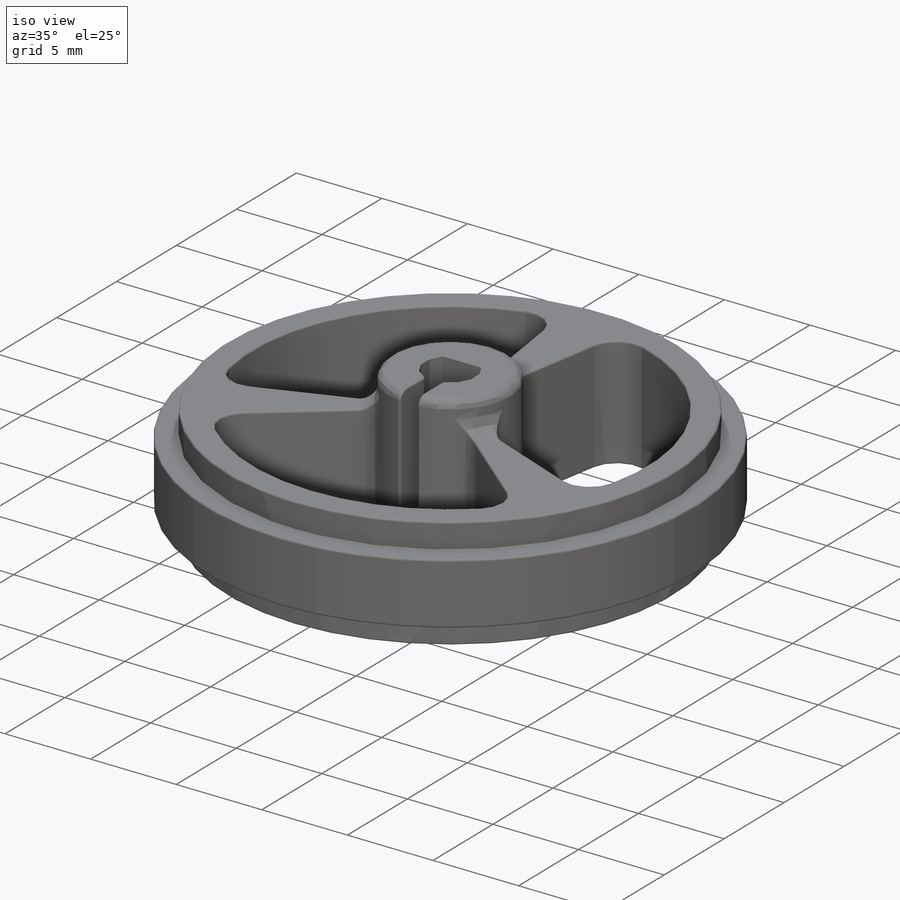
[diagram: iso view]
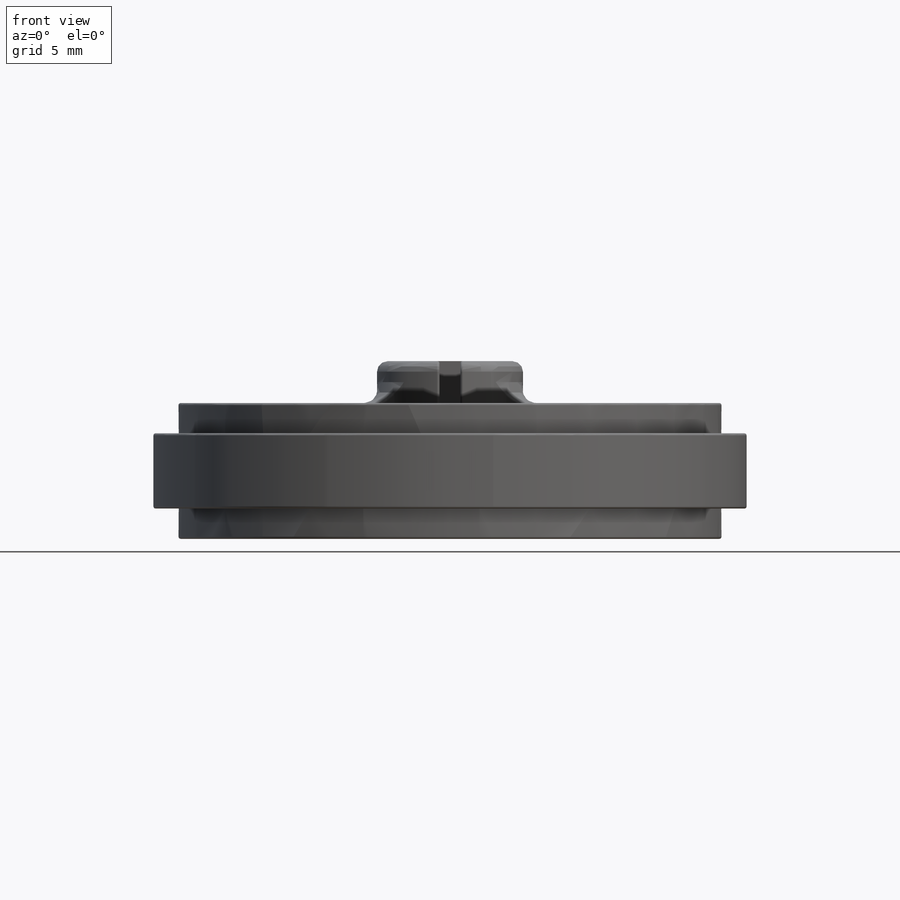
[diagram: front view]
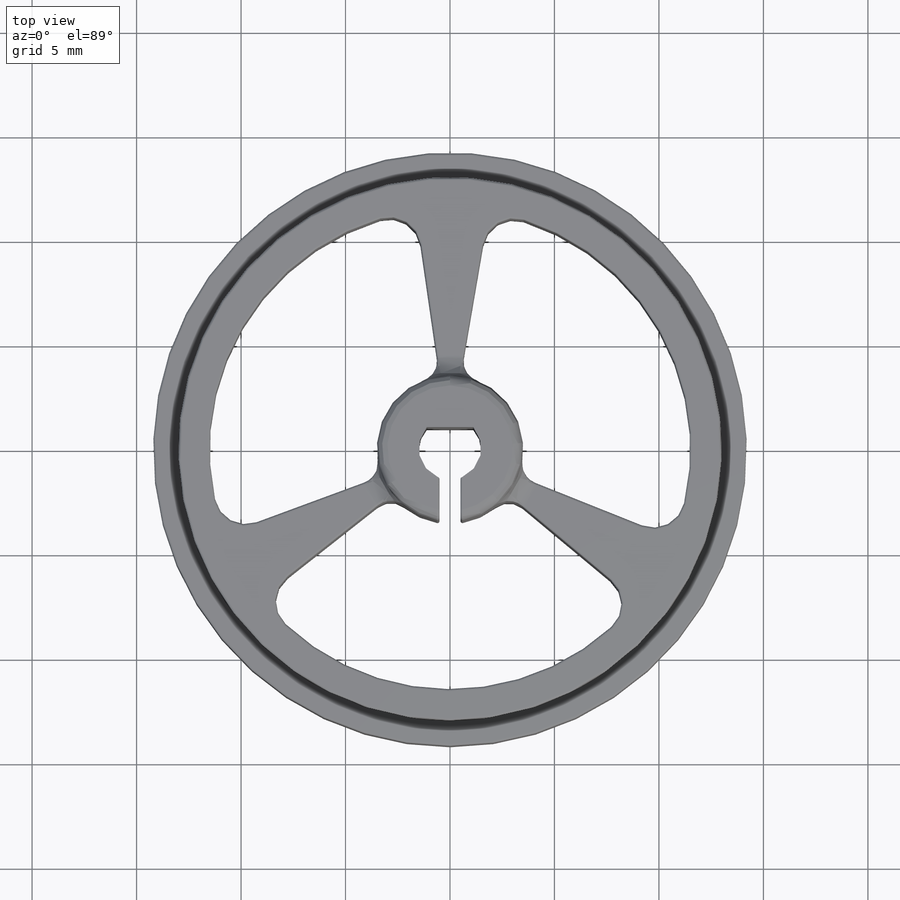
[diagram: top view]
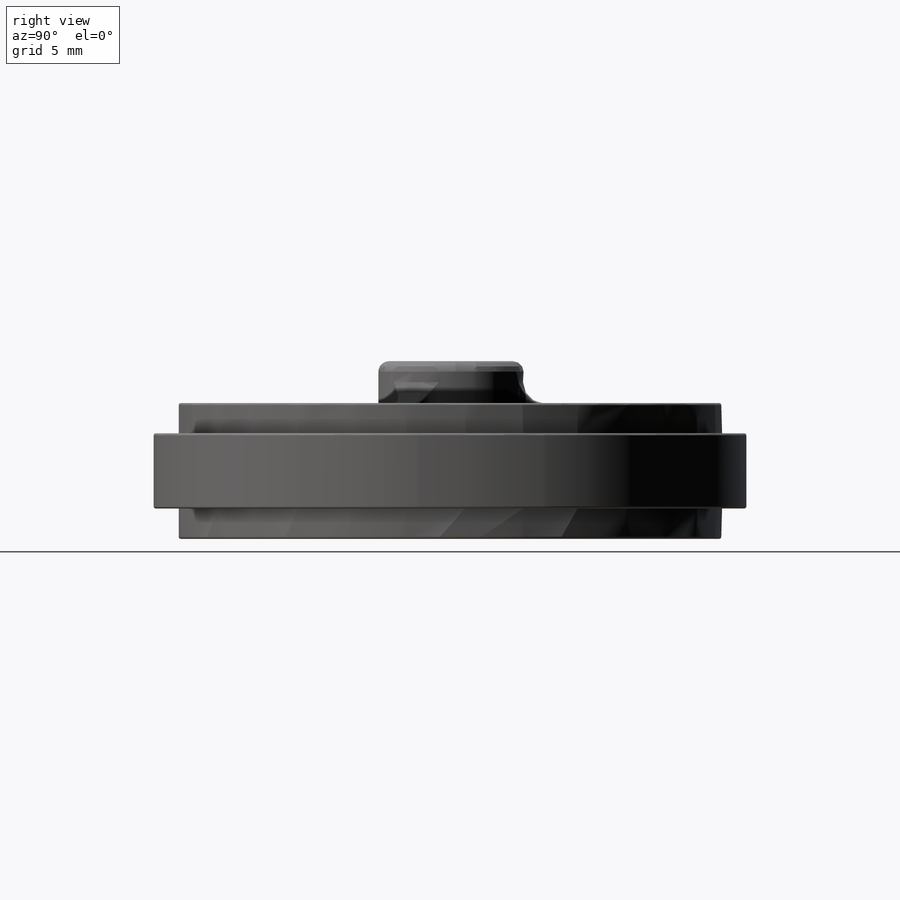
[diagram: right view]
SOLIDWORKS PART (.sldprt)
format: sldprt  version: not decoded by parser v0  size: 627,200 bytes
history: native  units: mm
features: fillet x11, plane x4, sketch x4, extrude x4, material x1 (+8 scaffold rows collapsed)
feature tree (32):
  scaffold x8  (default folders/planes/origin — collapsed)
  material  "Material <not specified>"
  plane  "Спереди"
  plane  "Сверху"
  plane  "Справа"
  sketch  "Эскиз1"  dims[c1.D1=26.0mm c1.D2=3.0mm c1.D3=7.0mm c1.D6=~23.877086mm c1.D10=23.0mm c1.D4=0.5mm c1.D5=0.5mm c2.D6=~1.979487mm c3.D6=~163.573579deg c4.D6=1.5mm c4.D7=0.5mm c4.D8=1.75mm c4.D9=8.0mm c4.D10=1.75mm c4.D11=0.5mm c4.D13=0.5mm c4.D14=~2.049079mm c5.D14=~0.064147deg c6.D14=0.5mm c6.D12=3.0]
  extrude  "Бобышка-Вытянуть1"  Depth=6.5mm
  fillet  "Скругление1"  Radius=1.5mm
  fillet  "Скругление2"  Radius=1.5mm
  fillet  "Скругление4"  Radius=1.5mm
  fillet  "Скругление5"  Radius=1.5mm
  sketch  "Эскиз2"
  extrude  "Бобышка-Вытянуть2"  Depth=2mm
  fillet  "Скругление6"  Radius=1mm
  fillet  "Скругление8"  Radius=0.5mm
  fillet  "Скругление9"  Radius=1mm
  fillet  "Скругление11"  Radius=0.1mm
  sketch  "Эскиз3"  dims[D1=1.0mm]
  extrude  "Бобышка-Вытянуть3"  Depth=8.5mm
  fillet  "Скругление12"  Radius=0.1mm
  plane  "Плоскость1"
  sketch  "Эскиз4"  dims[D1=26.0mm D2=28.4mm]
  extrude  "Бобышка-Вытянуть4"  Depth=1.8mm
  fillet  "Скругление15"  Radius=0.1mm
  fillet  "Скругление16"  Radius=0.1mm
decode coverage: 18 of 19 modeling features carry decoded parameters
note: ~ marks probable driven/reference dimensions
note: suppression state not decoded; provenance and decode notes live in map.json
